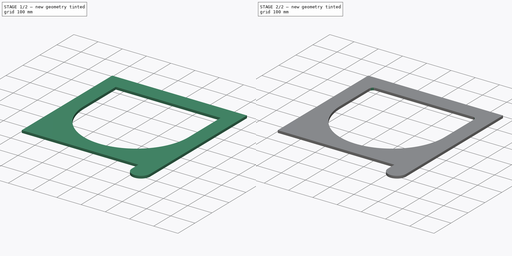
[diagram: build sequence overview — one tinted view per stage of 2, left to right]
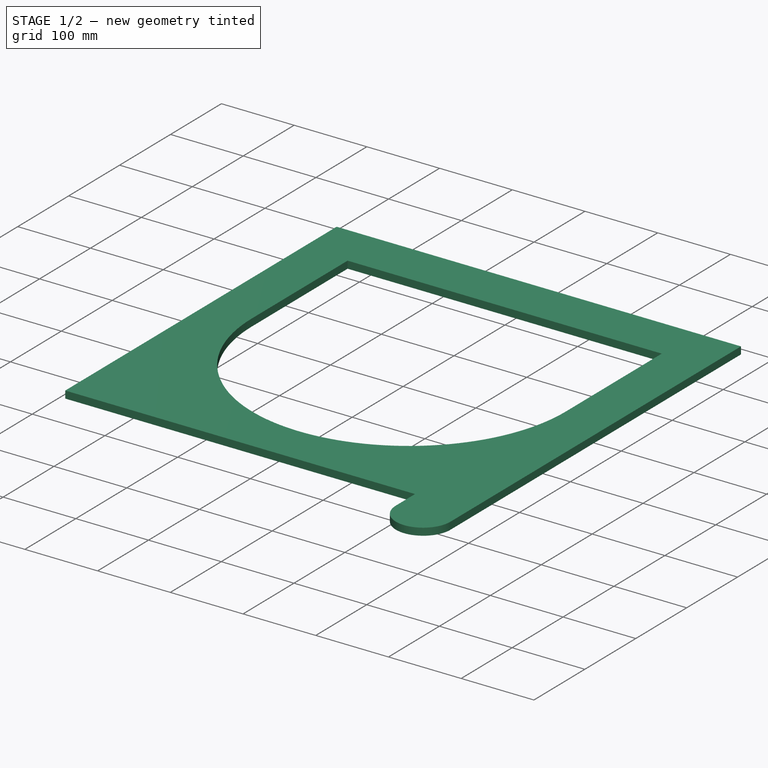
[diagram: stage 1 of 2 — iso view after this stage's code; geometry added in this stage tinted green]
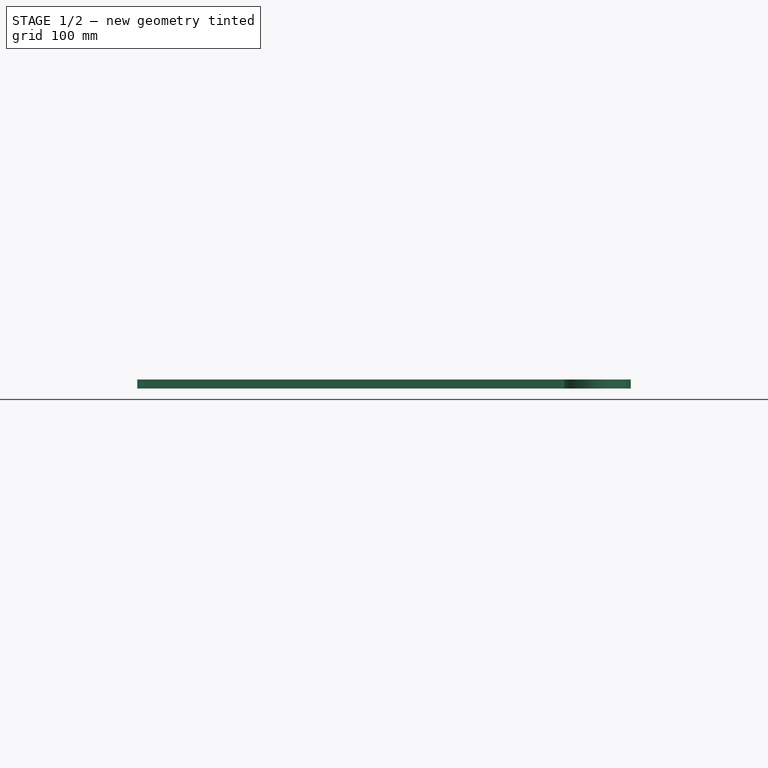
[diagram: stage 1 of 2 — front view after this stage's code; geometry added in this stage tinted green]
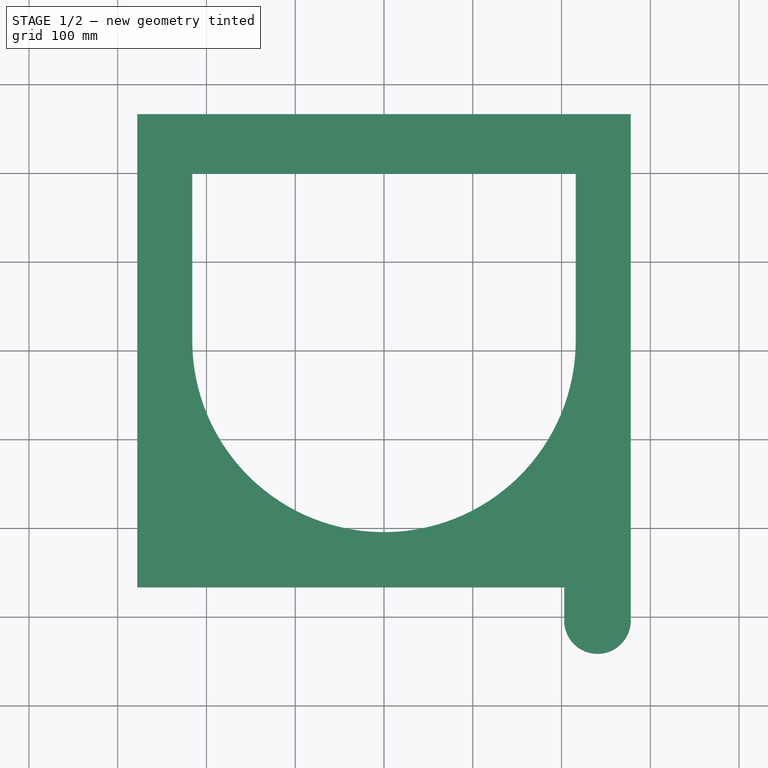
[diagram: stage 1 of 2 — top view after this stage's code; geometry added in this stage tinted green]
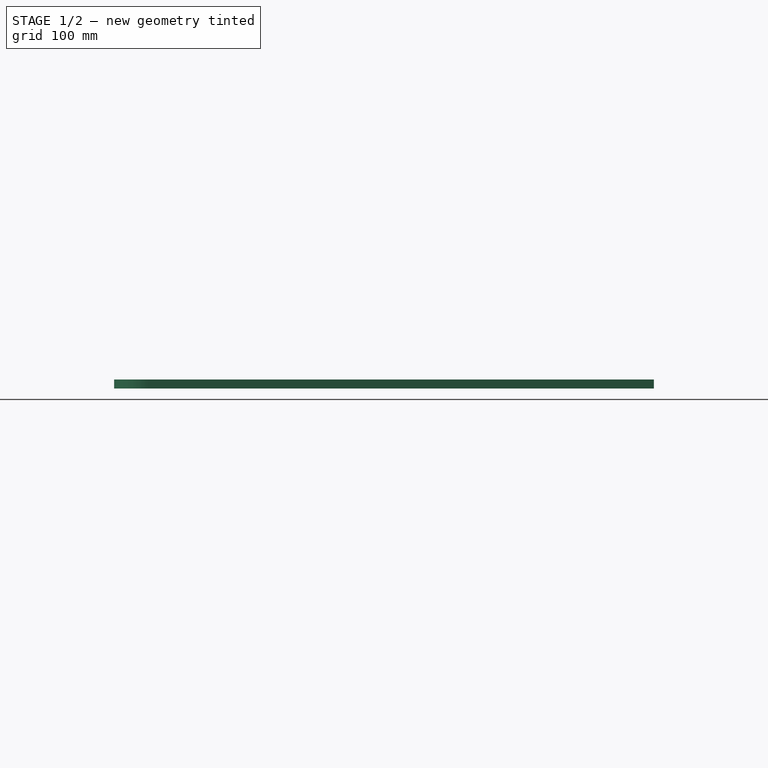
[diagram: stage 1 of 2 — right view after this stage's code; geometry added in this stage tinted green]
FCSTD DOCUMENT  (FreeCAD 0.20R)
Label: porte
License: All rights reserved
LicenseURL: http://en.wikipedia.org/wiki/All_rights_reserved
objects: TechDraw::DrawSVGTemplate×2, TechDraw::DrawViewPart×2, TechDraw::DrawPage×2, Sketcher::SketchObject×1, PartDesign::Pad×1, PartDesign::Fillet×1, PartDesign::Body×1
note: 6 computed .brp shape members not serialized (recipe doc carries the construction recipe); baked Part::Feature solids carry a one-line shape summary decoded from their .brp

FEATURE [Sketcher::SketchObject] Sketch
  FullyConstrained = true
  MapMode = 5
  Support = -> [XY_Plane]
  sketch-geometry (12):
    g0: LineSegment StartX=-278 StartY=-266.5 StartZ=0 EndX=-278 EndY=266.5 EndZ=0
    g1: LineSegment StartX=-278 StartY=266.5 StartZ=0 EndX=278 EndY=266.5 EndZ=0
    g2: LineSegment StartX=278 StartY=266.5 StartZ=0 EndX=278 EndY=-304 EndZ=0
    g3: LineSegment StartX=-278 StartY=-266.5 StartZ=0 EndX=203 EndY=-266.5 EndZ=0
    g4: LineSegment StartX=203 StartY=-266.5 StartZ=0 EndX=203 EndY=-304 EndZ=0
    g5: ArcOfCircle CenterX=240.5 CenterY=-304 CenterZ=0 NormalX=0 NormalY=0 NormalZ=1 AngleXU=0 Radius=37.5 StartAngle=3.14159 EndAngle=6.28319
    g6: LineSegment StartX=203 StartY=-304 StartZ=0 EndX=278 EndY=-304 EndZ=0
    g7: LineSegment StartX=-216 StartY=11.5 StartZ=0 EndX=-216 EndY=199.5 EndZ=0
    g8: LineSegment StartX=-216 StartY=199.5 StartZ=0 EndX=216 EndY=199.5 EndZ=0
    g9: LineSegment StartX=216 StartY=199.5 StartZ=0 EndX=216 EndY=11.5 EndZ=0
    g10: ArcOfCircle CenterX=-5.7e-15 CenterY=11.5 CenterZ=0 NormalX=0 NormalY=0 NormalZ=1 AngleXU=0 Radius=216 StartAngle=3.14159 EndAngle=6.28319
    g11: GeomPoint X=0 Y=-204.5 Z=0
  constraints (33):
    c: Coincident(g0,g1)
    c: Coincident(g1,g2)
    c: Vertical(g2)
    c: Coincident(g0,g3)
    c: Horizontal(g3)
    c: Coincident(g3,g4)
    c: Vertical(g4)
    c: DistanceX(g1,g1) = 556
    c: DistanceY(g0,g0) = 533
    c: Symmetric(g0,g1,g-2)
    c: Symmetric(g0,g0,g-1)
    c: Distance(g2,g4) = 75
    c: Coincident(g5,g2)
    c: Coincident(g5,g4)
    c: Angle(g5) = 3.14159
    c: Coincident(g6,g4)
    c: Coincident(g6,g2)
    c: Perpendicular(g2,g6)
    c: DistanceY(g4,g4) = 37.5
    c: Coincident(g7,g8)
    c: Coincident(g8,g9)
    c: Symmetric(g8,g7,g-2)
    c: Distance(g8,g1) = 67
    c: Vertical(g7)
    c: Vertical(g9)
    c: Coincident(g10,g7)
    c: Coincident(g10,g9)
    c: Angle(g10) = 3.14159
    c: Equal(g7,g9)
    c: Distance(g7,g0) = 62
    c: PointOnObject(g11,g10)
    c: PointOnObject(g11,g-2)
    c: Distance(g11,g3) = 62
FEATURE [PartDesign::Pad] Pad
  Direction = (0,0,1)
  Length = 10
  Length2 = 100
  Profile = -> Sketch
  Type = 0
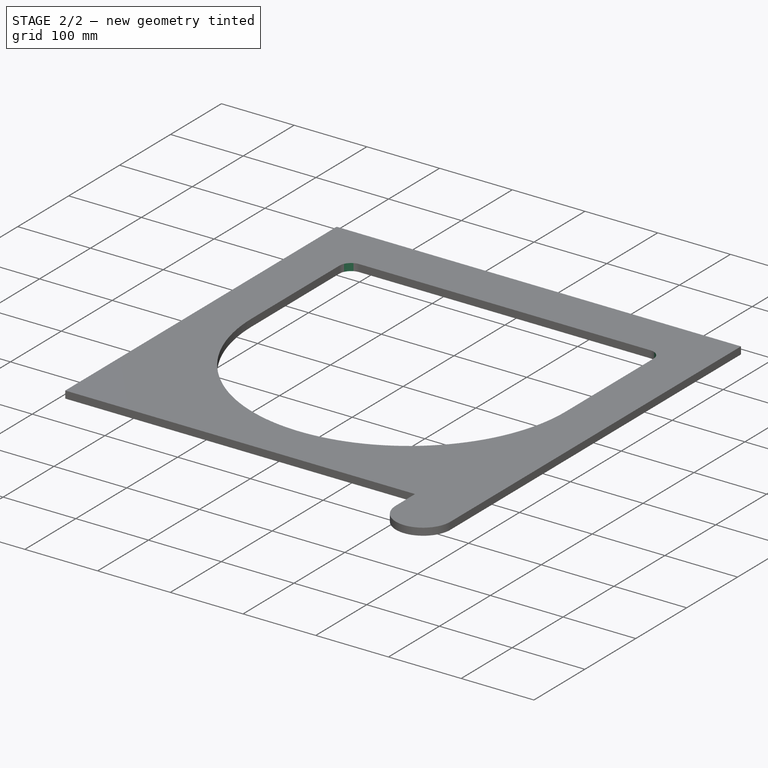
[diagram: stage 2 of 2 — iso view after this stage's code; geometry added in this stage tinted green]
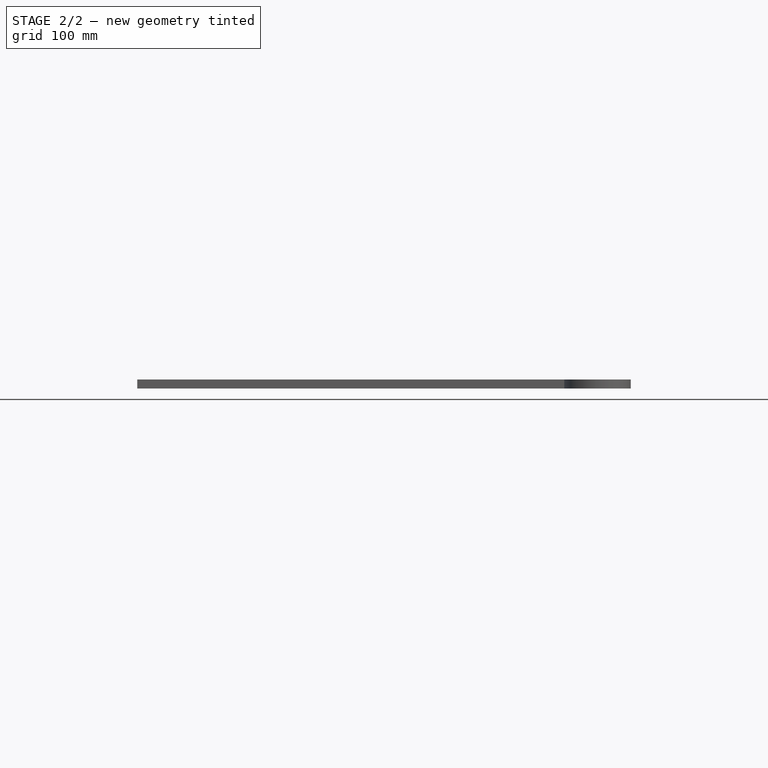
[diagram: stage 2 of 2 — front view after this stage's code; geometry added in this stage tinted green]
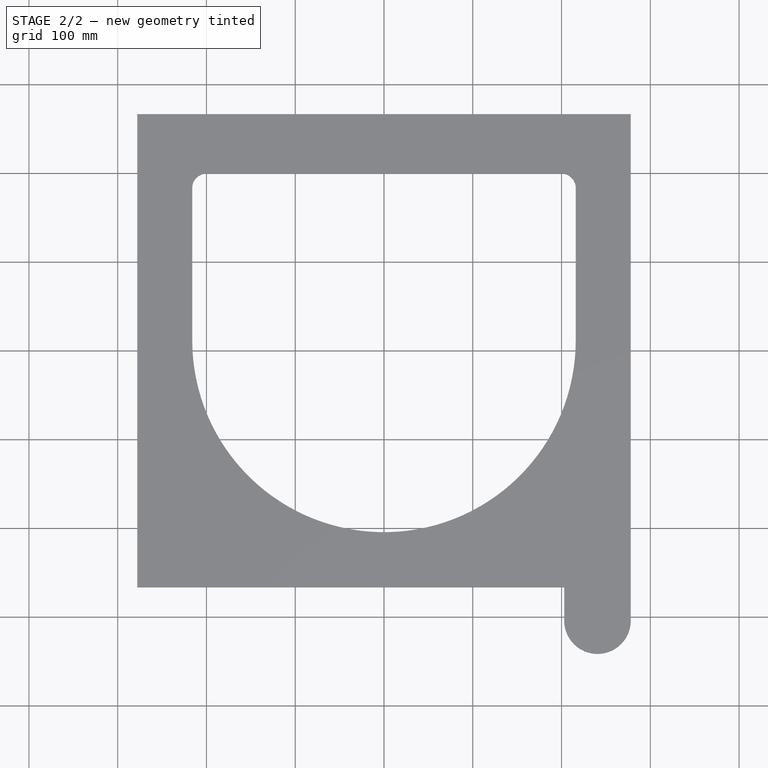
[diagram: stage 2 of 2 — top view after this stage's code; geometry added in this stage tinted green]
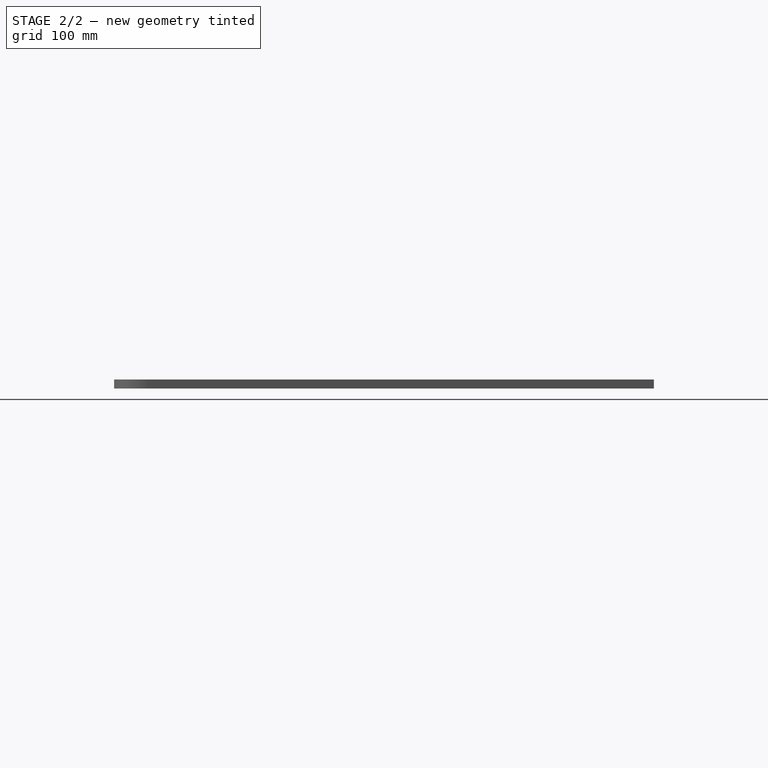
[diagram: stage 2 of 2 — right view after this stage's code; geometry added in this stage tinted green]
FEATURE [PartDesign::Fillet] Fillet
  Base = -> Pad [Edge26,Edge23]
  BaseFeature = -> Pad
  Radius = 16
  SupportTransform = false
FEATURE [PartDesign::Body] Body
  Group = -> [Sketch,Pad,Fillet]
  Origin = -> Origin
  Tip = -> Fillet
FEATURE [TechDraw::DrawSVGTemplate] Template
  EditableTexts = Designed_by_Name=Designed by Name; Drawing_number=Drawing number; FC-Date=Date; FC-SC=Scale; FC-SH=Sheet; FC-Title=Title; Subtitle=Subtitle; Weight=Weight
  Height = 210
  Orientation = 1
  Width = 297
FEATURE [TechDraw::DrawViewPart] View
  CoarseView = false
  Direction = (0,0,1)
  Focus = 100
  HardHidden = false
  IsoCount = 0
  IsoHidden = false
  IsoVisible = false
  LockPosition = false
  Perspective = false
  Rotation = 0
  ScaleType = 0
  SeamHidden = false
  SeamVisible = true
  SmoothHidden = false
  SmoothVisible = true
  Source = -> [Body]
  X = 148.5
  XDirection = (1,0,0)
  Y = 105
FEATURE [TechDraw::DrawPage] Page
  KeepUpdated = true
  NextBalloonIndex = 1
  ProjectionType = 0
  Template = -> Template
  Views = -> [View]
FEATURE [TechDraw::DrawSVGTemplate] Template001
  Height = 841
  Orientation = 1
  Width = 1189
FEATURE [TechDraw::DrawViewPart] View001
  CoarseView = false
  Direction = (0,0,1)
  Focus = 100
  HardHidden = false
  IsoCount = 0
  IsoHidden = false
  IsoVisible = false
  LockPosition = false
  Perspective = false
  Rotation = 0
  ScaleType = 0
  SeamHidden = false
  SeamVisible = true
  SmoothHidden = false
  SmoothVisible = true
  Source = -> [Body]
  X = 594.5
  XDirection = (1,0,0)
  Y = 420.5
FEATURE [TechDraw::DrawPage] Page001
  KeepUpdated = true
  NextBalloonIndex = 1
  ProjectionType = 0
  Template = -> Template001
  Views = -> [View001]
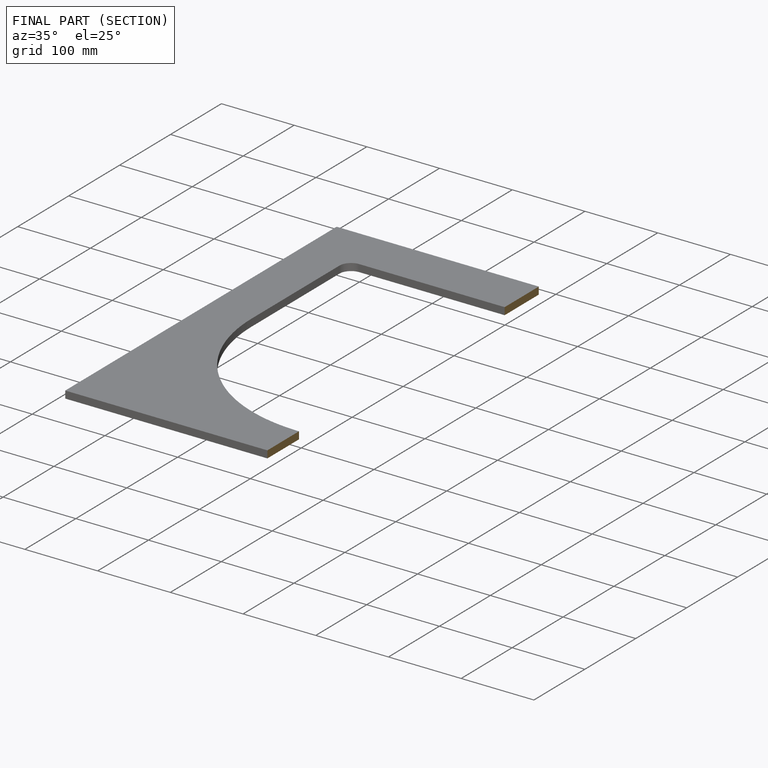
[diagram: finished part — half-section view (interior)]
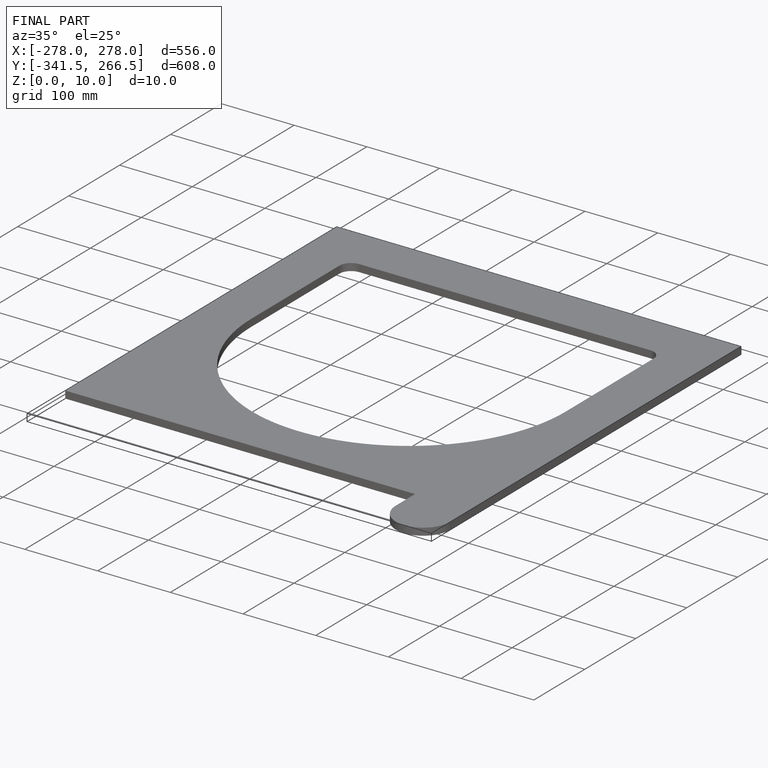
[diagram: finished part — iso view with bounding-box wireframe]
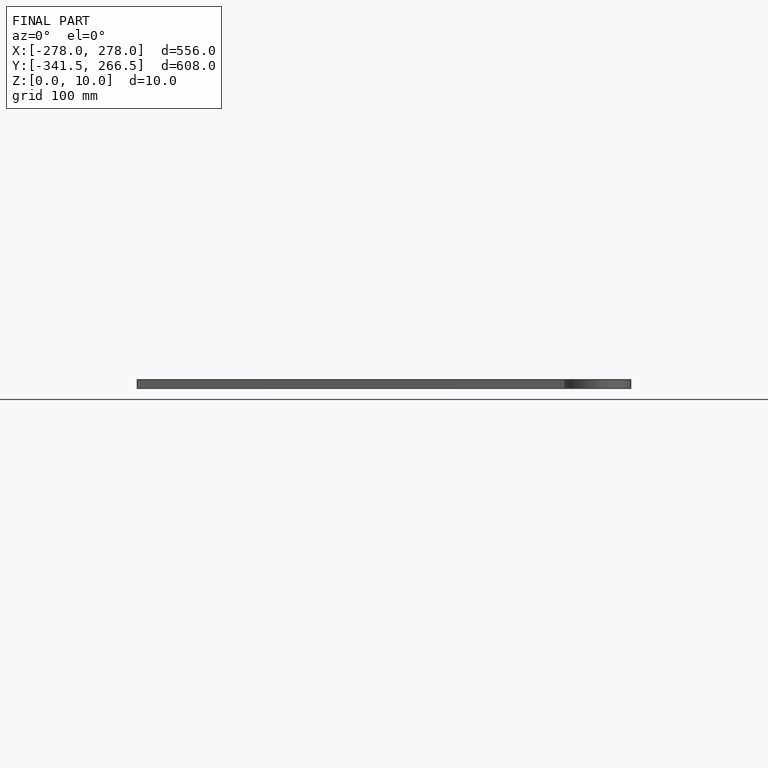
[diagram: finished part — front view with bounding-box wireframe]
